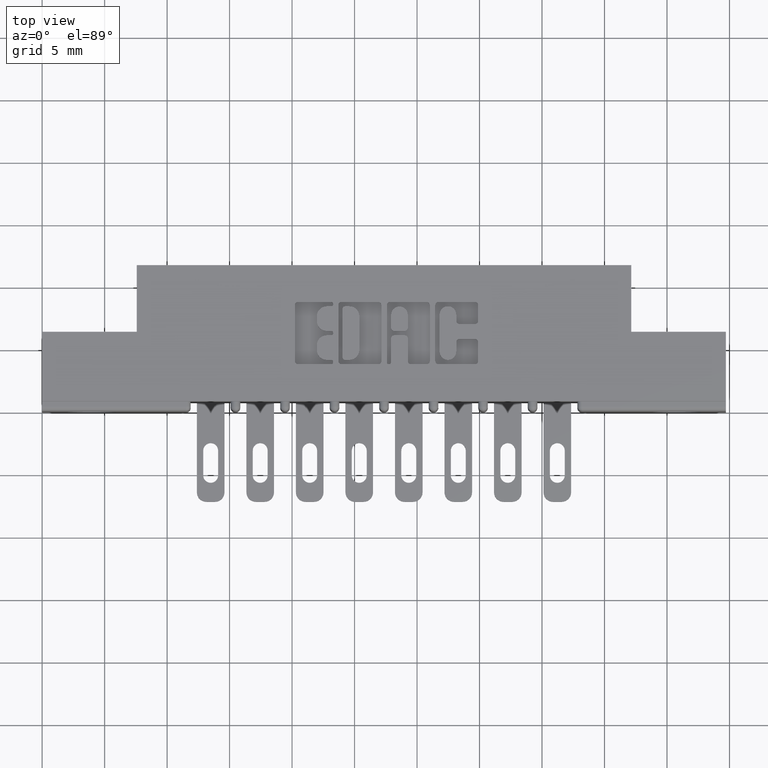
[diagram: clean part render]
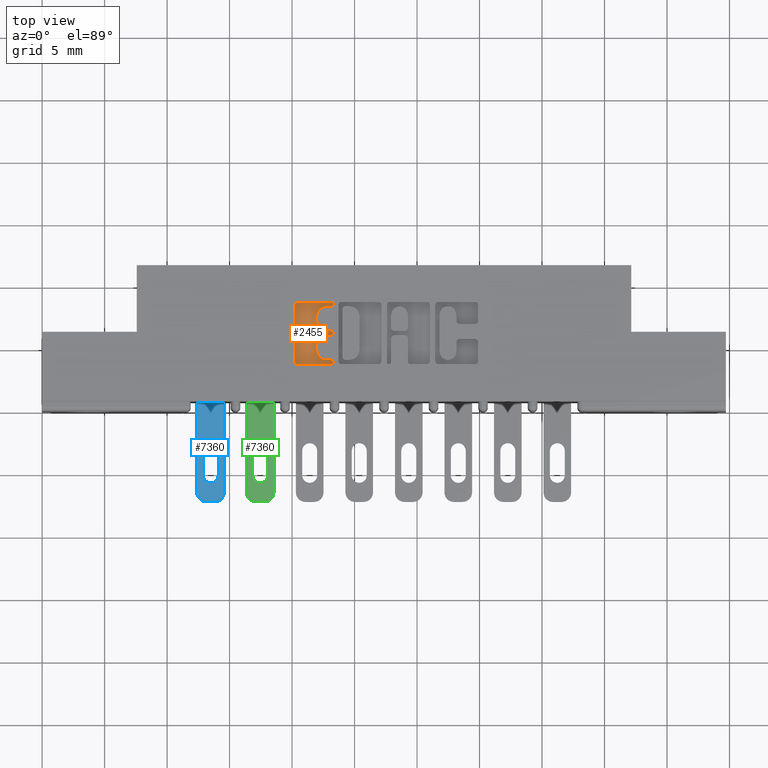
[diagram: same view with three faces highlighted in distinct colors, each labeled with its STEP entity id]
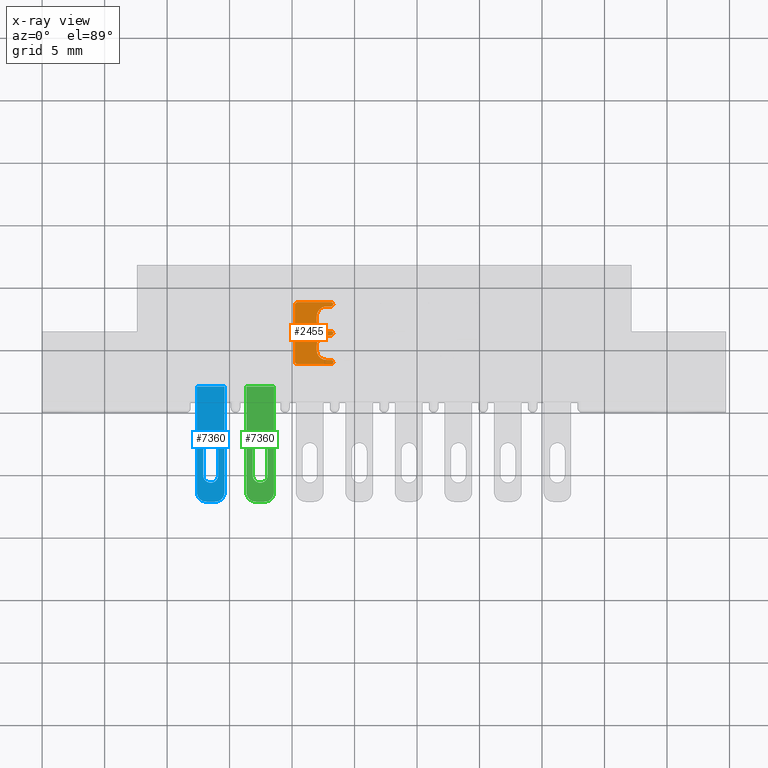
[diagram: x-ray of the same camera — body ghosted, the three highlighted faces saturated]
A machine part, top view with three faces highlighted in distinct colors.
The next image is the same camera in x-ray (body ghosted, the three faces saturated) — at least one of them is partly hidden behind the body in this view.
Their STEP definitions:

[orange] entity #2455 — the highlighted planar face has unit normal (0, 0, 1).
#19 = CARTESIAN_POINT ( 'NONE',  ( 0.8966370600050841411, 0.2386290308573598695, -0.01000000000000000021 ) ) ;
#156 = CARTESIAN_POINT ( 'NONE',  ( 0.9101336065353355931, 0.1542142671046510261, -0.01000000000000000021 ) ) ;
#428 = CARTESIAN_POINT ( 'NONE',  ( 0.8652269153529278389, 0.0000000000000000000, -0.01000000000000000021 ) ) ;
#478 = DIRECTION ( 'NONE',  ( 1.000000000000000000, 0.0000000000000000000, 0.0000000000000000000 ) ) ;
#529 = AXIS2_PLACEMENT_3D ( 'NONE', #7818, #2737, #6745 ) ;
#620 = CIRCLE ( 'NONE', #2987, 0.03141014465218178175 ) ;
#721 = DIRECTION ( 'NONE',  ( -0.0000000000000000000, 0.0000000000000000000, 1.000000000000000000 ) ) ;
#768 = ORIENTED_EDGE ( 'NONE', *, *, #2542, .T. ) ;
#812 = VERTEX_POINT ( 'NONE', #2805 ) ;
#816 = CARTESIAN_POINT ( 'NONE',  ( 0.9101336064153888739, 0.2386290308573598695, -0.01000000000000000021 ) ) ;
#993 = DIRECTION ( 'NONE',  ( -1.000000000000000000, 0.0000000000000000000, 0.0000000000000000000 ) ) ;
#1266 = CARTESIAN_POINT ( 'NONE',  ( 0.8058421106199185058, 0.1473432979619880290, -0.01000000000000000021 ) ) ;
#1304 = VECTOR ( 'NONE', #5798, 39.37007874015748143 ) ;
#1306 = ORIENTED_EDGE ( 'NONE', *, *, #6398, .T. ) ;
#1356 = EDGE_CURVE ( 'NONE', #10658, #3503, #6012, .T. ) ;
#1427 = ORIENTED_EDGE ( 'NONE', *, *, #3255, .T. ) ;
#1515 = ORIENTED_EDGE ( 'NONE', *, *, #3141, .T. ) ;
#1569 = AXIS2_PLACEMENT_3D ( 'NONE', #10983, #9924, #2816 ) ;
#1573 = VERTEX_POINT ( 'NONE', #10378 ) ;
#1676 = EDGE_CURVE ( 'NONE', #11219, #10700, #1794, .T. ) ;
#1742 = AXIS2_PLACEMENT_3D ( 'NONE', #156, #8121, #11394 ) ;
#1745 = CARTESIAN_POINT ( 'NONE',  ( 0.8966370600050841411, 0.2523709691426869184, -0.01000000000000000021 ) ) ;
#1759 = AXIS2_PLACEMENT_3D ( 'NONE', #7106, #7037, #10257 ) ;
#1794 = LINE ( 'NONE', #3793, #1304 ) ;
#1973 = ORIENTED_EDGE ( 'NONE', *, *, #7226, .T. ) ;
#2159 = EDGE_LOOP ( 'NONE', ( #4936, #768, #11924, #6663, #10409, #3053, #1973, #5950, #5264, #9595, #3760, #11023, #9573, #1427, #6684, #2612, #5627, #1306, #1515, #6001, #5304 ) ) ;
#2178 = DIRECTION ( 'NONE',  ( 1.000000000000000000, 0.0000000000000000000, 0.0000000000000000000 ) ) ;
#2233 = CARTESIAN_POINT ( 'NONE',  ( 0.0000000000000000000, 0.0000000000000000000, -0.01000000000000000021 ) ) ;
#2455 = ADVANCED_FACE ( 'NONE', ( #8262 ), #8326, .T. ) ;
#2539 = DIRECTION ( 'NONE',  ( 1.000000000000000000, 0.0000000000000000000, 0.0000000000000000000 ) ) ;
#2542 = EDGE_CURVE ( 'NONE', #6034, #11171, #10663, .T. ) ;
#2559 = DIRECTION ( 'NONE',  ( 1.000000000000000000, 0.0000000000000000000, 0.0000000000000000000 ) ) ;
#2577 = AXIS2_PLACEMENT_3D ( 'NONE', #5103, #10587, #10206 ) ;
#2612 = ORIENTED_EDGE ( 'NONE', *, *, #4764, .T. ) ;
#2737 = DIRECTION ( 'NONE',  ( -0.0000000000000000000, 0.0000000000000000000, 1.000000000000000000 ) ) ;
#2805 = CARTESIAN_POINT ( 'NONE',  ( 0.9170045756779998669, 0.3367857328953892670, -0.01000000000000000021 ) ) ;
#2811 = DIRECTION ( 'NONE',  ( -0.0000000000000000000, 0.0000000000000000000, 1.000000000000000000 ) ) ;
#2816 = DIRECTION ( 'NONE',  ( 1.000000000000000000, 0.0000000000000000000, 0.0000000000000000000 ) ) ;
#2826 = VECTOR ( 'NONE', #11075, 39.37007874015748143 ) ;
#2851 = CIRCLE ( 'NONE', #1569, 0.03141014465221578927 ) ;
#2987 = AXIS2_PLACEMENT_3D ( 'NONE', #12162, #4055, #2178 ) ;
#3028 = CARTESIAN_POINT ( 'NONE',  ( 0.9101336065353514693, 0.3299147637527387600, -0.01000000000000000021 ) ) ;
#3053 = ORIENTED_EDGE ( 'NONE', *, *, #7648, .T. ) ;
#3081 = AXIS2_PLACEMENT_3D ( 'NONE', #8672, #5638, #478 ) ;
#3121 = EDGE_CURVE ( 'NONE', #12800, #5289, #620, .T. ) ;
#3141 = EDGE_CURVE ( 'NONE', #12904, #9001, #9094, .T. ) ;
#3153 = CARTESIAN_POINT ( 'NONE',  ( 0.9101336064154144090, 0.1610852362473132737, -0.01000000000000000021 ) ) ;
#3205 = VECTOR ( 'NONE', #10625, 39.37007874015748143 ) ;
#3255 = EDGE_CURVE ( 'NONE', #12800, #5563, #4522, .T. ) ;
#3259 = VERTEX_POINT ( 'NONE', #5520 ) ;
#3502 = CARTESIAN_POINT ( 'NONE',  ( 0.9101336065353355931, 0.1542142671046510261, -0.01000000000000000021 ) ) ;
#3503 = VERTEX_POINT ( 'NONE', #11812 ) ;
#3760 = ORIENTED_EDGE ( 'NONE', *, *, #3774, .T. ) ;
#3761 = DIRECTION ( 'NONE',  ( -0.0000000000000000000, 0.0000000000000000000, 1.000000000000000000 ) ) ;
#3774 = EDGE_CURVE ( 'NONE', #3503, #6015, #4543, .T. ) ;
#3793 = CARTESIAN_POINT ( 'NONE',  ( 0.0000000000000000000, 0.3436567020380357218, -0.01000000000000000021 ) ) ;
#3960 = EDGE_CURVE ( 'NONE', #10966, #8884, #9896, .T. ) ;
#4055 = DIRECTION ( 'NONE',  ( -0.0000000000000000000, 0.0000000000000000000, 1.000000000000000000 ) ) ;
#4115 = LINE ( 'NONE', #6993, #2826 ) ;
#4165 = CARTESIAN_POINT ( 'NONE',  ( 0.9101336065353514693, 0.3436567020380357218, -0.01000000000000000021 ) ) ;
#4407 = EDGE_CURVE ( 'NONE', #11171, #812, #6870, .T. ) ;
#4440 = DIRECTION ( 'NONE',  ( -0.0000000000000000000, 0.0000000000000000000, 1.000000000000000000 ) ) ;
#4522 = LINE ( 'NONE', #428, #3205 ) ;
#4543 = CIRCLE ( 'NONE', #8609, 0.006870969142662229460 ) ;
#4621 = DIRECTION ( 'NONE',  ( 1.000000000000000000, 6.876017002796114919E-15, 0.0000000000000000000 ) ) ;
#4696 = VECTOR ( 'NONE', #993, 39.37007874015748143 ) ;
#4764 = EDGE_CURVE ( 'NONE', #8590, #10966, #4115, .T. ) ;
#4783 = CARTESIAN_POINT ( 'NONE',  ( 0.7960264404161154772, 0.1571589681657930282, -0.01000000000000000021 ) ) ;
#4936 = ORIENTED_EDGE ( 'NONE', *, *, #12693, .F. ) ;
#5103 = CARTESIAN_POINT ( 'NONE',  ( 0.9101336065353514693, 0.3367857328953892670, -0.01000000000000000021 ) ) ;
#5264 = ORIENTED_EDGE ( 'NONE', *, *, #7635, .T. ) ;
#5289 = VERTEX_POINT ( 'NONE', #8987 ) ;
#5304 = ORIENTED_EDGE ( 'NONE', *, *, #12795, .T. ) ;
#5305 = DIRECTION ( 'NONE',  ( 1.000000000000000000, 0.0000000000000000000, 0.0000000000000000000 ) ) ;
#5520 = CARTESIAN_POINT ( 'NONE',  ( 0.8652269153529097423, 0.2837811137948614282, -0.01000000000000000021 ) ) ;
#5563 = VERTEX_POINT ( 'NONE', #6037 ) ;
#5627 = ORIENTED_EDGE ( 'NONE', *, *, #3960, .T. ) ;
#5638 = DIRECTION ( 'NONE',  ( -0.0000000000000000000, 0.0000000000000000000, 1.000000000000000000 ) ) ;
#5649 = AXIS2_PLACEMENT_3D ( 'NONE', #6111, #10205, #9188 ) ;
#5694 = CARTESIAN_POINT ( 'NONE',  ( 0.8652269153529278389, 0.1924953808994934457, -0.01000000000000000021 ) ) ;
#5772 = AXIS2_PLACEMENT_3D ( 'NONE', #5809, #721, #2539 ) ;
#5798 = DIRECTION ( 'NONE',  ( -1.000000000000000000, 0.0000000000000000000, 0.0000000000000000000 ) ) ;
#5809 = CARTESIAN_POINT ( 'NONE',  ( 0.8058421106199380457, 0.3338410318342131533, -0.01000000000000000021 ) ) ;
#5836 = DIRECTION ( 'NONE',  ( 1.000000000000000000, 0.0000000000000000000, 0.0000000000000000000 ) ) ;
#5950 = ORIENTED_EDGE ( 'NONE', *, *, #10829, .T. ) ;
#6001 = ORIENTED_EDGE ( 'NONE', *, *, #9442, .F. ) ;
#6012 = CIRCLE ( 'NONE', #1742, 0.006870969142662229460 ) ;
#6015 = VERTEX_POINT ( 'NONE', #3153 ) ;
#6034 = VERTEX_POINT ( 'NONE', #10246 ) ;
#6037 = CARTESIAN_POINT ( 'NONE',  ( 0.8652269153529278389, 0.2072188862052036229, -0.01000000000000000021 ) ) ;
#6093 = CARTESIAN_POINT ( 'NONE',  ( 0.9101336065353514693, 0.3367857328953892670, -0.01000000000000000021 ) ) ;
#6111 = CARTESIAN_POINT ( 'NONE',  ( 0.8966370600050841411, 0.2072188862052036229, -0.01000000000000000021 ) ) ;
#6134 = CARTESIAN_POINT ( 'NONE',  ( 0.0000000000000000000, 0.2523709691426869184, -0.01000000000000000021 ) ) ;
#6219 = AXIS2_PLACEMENT_3D ( 'NONE', #6093, #2811, #10189 ) ;
#6305 = CIRCLE ( 'NONE', #529, 0.006870969142663458512 ) ;
#6398 = EDGE_CURVE ( 'NONE', #8884, #12904, #6305, .T. ) ;
#6663 = ORIENTED_EDGE ( 'NONE', *, *, #7461, .T. ) ;
#6684 = ORIENTED_EDGE ( 'NONE', *, *, #11229, .F. ) ;
#6745 = DIRECTION ( 'NONE',  ( 1.000000000000000000, 0.0000000000000000000, 0.0000000000000000000 ) ) ;
#6870 = CIRCLE ( 'NONE', #6219, 0.006870969142648433205 ) ;
#6878 = AXIS2_PLACEMENT_3D ( 'NONE', #10155, #11399, #5305 ) ;
#6933 = CARTESIAN_POINT ( 'NONE',  ( 0.9101336064154144090, 0.1473432979619887506, -0.01000000000000000021 ) ) ;
#6935 = LINE ( 'NONE', #11021, #8120 ) ;
#6966 = EDGE_CURVE ( 'NONE', #6015, #5289, #6935, .T. ) ;
#6993 = CARTESIAN_POINT ( 'NONE',  ( 0.0000000000000000000, 0.2386290308573598695, -0.01000000000000000021 ) ) ;
#6997 = DIRECTION ( 'NONE',  ( -1.000000000000000000, -1.189163988687022540E-13, 0.0000000000000000000 ) ) ;
#7037 = DIRECTION ( 'NONE',  ( -0.0000000000000000000, 0.0000000000000000000, 1.000000000000000000 ) ) ;
#7106 = CARTESIAN_POINT ( 'NONE',  ( 0.9101336065353100580, 0.2455000000000234217, -0.01000000000000000021 ) ) ;
#7208 = VECTOR ( 'NONE', #2559, 39.37007874015748143 ) ;
#7226 = EDGE_CURVE ( 'NONE', #10661, #12298, #8794, .T. ) ;
#7266 = VECTOR ( 'NONE', #11608, 39.37007874015748143 ) ;
#7461 = EDGE_CURVE ( 'NONE', #812, #11219, #11125, .T. ) ;
#7632 = CARTESIAN_POINT ( 'NONE',  ( 0.9170045756779734436, 0.2455000000000234217, -0.01000000000000000021 ) ) ;
#7635 = EDGE_CURVE ( 'NONE', #11720, #10658, #7677, .T. ) ;
#7648 = EDGE_CURVE ( 'NONE', #10700, #10661, #10065, .T. ) ;
#7677 = LINE ( 'NONE', #12981, #8354 ) ;
#7701 = CARTESIAN_POINT ( 'NONE',  ( 0.0000000000000000000, 0.3299147637527387600, -0.01000000000000000021 ) ) ;
#7818 = CARTESIAN_POINT ( 'NONE',  ( 0.9101336065353100580, 0.2455000000000234217, -0.01000000000000000021 ) ) ;
#7833 = DIRECTION ( 'NONE',  ( 0.0000000000000000000, 1.000000000000000000, -0.0000000000000000000 ) ) ;
#7836 = AXIS2_PLACEMENT_3D ( 'NONE', #2233, #4440, #11330 ) ;
#8120 = VECTOR ( 'NONE', #6997, 39.37007874015748143 ) ;
#8121 = DIRECTION ( 'NONE',  ( -0.0000000000000000000, 0.0000000000000000000, 1.000000000000000000 ) ) ;
#8262 = FACE_OUTER_BOUND ( 'NONE', #2159, .T. ) ;
#8326 = PLANE ( 'NONE',  #7836 ) ;
#8354 = VECTOR ( 'NONE', #4621, 39.37007874015748143 ) ;
#8402 = CARTESIAN_POINT ( 'NONE',  ( 0.8058421106199380457, 0.3436567020380357218, -0.01000000000000000021 ) ) ;
#8590 = VERTEX_POINT ( 'NONE', #19 ) ;
#8609 = AXIS2_PLACEMENT_3D ( 'NONE', #3502, #3761, #5836 ) ;
#8672 = CARTESIAN_POINT ( 'NONE',  ( 0.8058421106199222805, 0.1571589681657930282, -0.01000000000000000021 ) ) ;
#8794 = LINE ( 'NONE', #10810, #7266 ) ;
#8821 = CIRCLE ( 'NONE', #6878, 0.03141014465217440571 ) ;
#8884 = VERTEX_POINT ( 'NONE', #7632 ) ;
#8987 = CARTESIAN_POINT ( 'NONE',  ( 0.8966370600051096762, 0.1610852362473116639, -0.01000000000000000021 ) ) ;
#9001 = VERTEX_POINT ( 'NONE', #1745 ) ;
#9005 = CARTESIAN_POINT ( 'NONE',  ( 0.7960264404161154772, 0.3338410318342131533, -0.01000000000000000021 ) ) ;
#9094 = LINE ( 'NONE', #6134, #4696 ) ;
#9188 = DIRECTION ( 'NONE',  ( 1.000000000000000000, 0.0000000000000000000, 0.0000000000000000000 ) ) ;
#9442 = EDGE_CURVE ( 'NONE', #3259, #9001, #8821, .T. ) ;
#9573 = ORIENTED_EDGE ( 'NONE', *, *, #3121, .F. ) ;
#9595 = ORIENTED_EDGE ( 'NONE', *, *, #1356, .T. ) ;
#9785 = LINE ( 'NONE', #10792, #12045 ) ;
#9896 = CIRCLE ( 'NONE', #1759, 0.006870969142663458512 ) ;
#9924 = DIRECTION ( 'NONE',  ( -0.0000000000000000000, 0.0000000000000000000, 1.000000000000000000 ) ) ;
#9931 = CIRCLE ( 'NONE', #3081, 0.009815670203805935967 ) ;
#10065 = CIRCLE ( 'NONE', #5772, 0.009815670203822599721 ) ;
#10155 = CARTESIAN_POINT ( 'NONE',  ( 0.8966370600050841411, 0.2837811137948614282, -0.01000000000000000021 ) ) ;
#10189 = DIRECTION ( 'NONE',  ( 1.000000000000000000, 0.0000000000000000000, 0.0000000000000000000 ) ) ;
#10205 = DIRECTION ( 'NONE',  ( -0.0000000000000000000, 0.0000000000000000000, 1.000000000000000000 ) ) ;
#10206 = DIRECTION ( 'NONE',  ( 1.000000000000000000, 0.0000000000000000000, 0.0000000000000000000 ) ) ;
#10246 = CARTESIAN_POINT ( 'NONE',  ( 0.8966370600051254414, 0.3299147637527387600, -0.01000000000000000021 ) ) ;
#10257 = DIRECTION ( 'NONE',  ( 1.000000000000000000, 0.0000000000000000000, 0.0000000000000000000 ) ) ;
#10378 = CARTESIAN_POINT ( 'NONE',  ( 0.8652269153529097423, 0.2985046191005228944, -0.01000000000000000021 ) ) ;
#10409 = ORIENTED_EDGE ( 'NONE', *, *, #1676, .T. ) ;
#10587 = DIRECTION ( 'NONE',  ( -0.0000000000000000000, 0.0000000000000000000, 1.000000000000000000 ) ) ;
#10625 = DIRECTION ( 'NONE',  ( 0.0000000000000000000, 1.000000000000000000, -0.0000000000000000000 ) ) ;
#10658 = VERTEX_POINT ( 'NONE', #6933 ) ;
#10661 = VERTEX_POINT ( 'NONE', #9005 ) ;
#10663 = LINE ( 'NONE', #7701, #7208 ) ;
#10700 = VERTEX_POINT ( 'NONE', #8402 ) ;
#10792 = CARTESIAN_POINT ( 'NONE',  ( 0.8652269153529097423, 0.0000000000000000000, -0.01000000000000000021 ) ) ;
#10810 = CARTESIAN_POINT ( 'NONE',  ( 0.7960264404161154772, 0.0000000000000000000, -0.01000000000000000021 ) ) ;
#10829 = EDGE_CURVE ( 'NONE', #12298, #11720, #9931, .T. ) ;
#10966 = VERTEX_POINT ( 'NONE', #816 ) ;
#10983 = CARTESIAN_POINT ( 'NONE',  ( 0.8966370600051254414, 0.2985046191005228944, -0.01000000000000000021 ) ) ;
#11021 = CARTESIAN_POINT ( 'NONE',  ( -1.915567620543177078E-14, 0.1610852362472050547, -0.01000000000000000021 ) ) ;
#11023 = ORIENTED_EDGE ( 'NONE', *, *, #6966, .T. ) ;
#11075 = DIRECTION ( 'NONE',  ( 1.000000000000000000, 0.0000000000000000000, 0.0000000000000000000 ) ) ;
#11125 = CIRCLE ( 'NONE', #2577, 0.006870969142648433205 ) ;
#11171 = VERTEX_POINT ( 'NONE', #3028 ) ;
#11219 = VERTEX_POINT ( 'NONE', #4165 ) ;
#11229 = EDGE_CURVE ( 'NONE', #8590, #5563, #12518, .T. ) ;
#11330 = DIRECTION ( 'NONE',  ( 1.000000000000000000, 0.0000000000000000000, 0.0000000000000000000 ) ) ;
#11394 = DIRECTION ( 'NONE',  ( 1.000000000000000000, 0.0000000000000000000, 0.0000000000000000000 ) ) ;
#11399 = DIRECTION ( 'NONE',  ( -0.0000000000000000000, 0.0000000000000000000, 1.000000000000000000 ) ) ;
#11608 = DIRECTION ( 'NONE',  ( 0.0000000000000000000, -1.000000000000000000, 0.0000000000000000000 ) ) ;
#11720 = VERTEX_POINT ( 'NONE', #1266 ) ;
#11812 = CARTESIAN_POINT ( 'NONE',  ( 0.9170045756779977575, 0.1542142671046510261, -0.01000000000000000021 ) ) ;
#11924 = ORIENTED_EDGE ( 'NONE', *, *, #4407, .T. ) ;
#12045 = VECTOR ( 'NONE', #7833, 39.37007874015748143 ) ;
#12162 = CARTESIAN_POINT ( 'NONE',  ( 0.8966370600051096762, 0.1924953808994934457, -0.01000000000000000021 ) ) ;
#12184 = CARTESIAN_POINT ( 'NONE',  ( 0.9101336065353100580, 0.2523709691426869184, -0.01000000000000000021 ) ) ;
#12298 = VERTEX_POINT ( 'NONE', #4783 ) ;
#12518 = CIRCLE ( 'NONE', #5649, 0.03141014465215623969 ) ;
#12693 = EDGE_CURVE ( 'NONE', #6034, #1573, #2851, .T. ) ;
#12795 = EDGE_CURVE ( 'NONE', #3259, #1573, #9785, .T. ) ;
#12800 = VERTEX_POINT ( 'NONE', #5694 ) ;
#12904 = VERTEX_POINT ( 'NONE', #12184 ) ;
#12981 = CARTESIAN_POINT ( 'NONE',  ( -1.013135022034645864E-15, 0.1473432979619824779, -0.01000000000000000021 ) ) ;

[blue] entity #7360 — the highlighted planar face has unit normal (-0, -0, -1).
#75 = AXIS2_PLACEMENT_3D ( 'NONE', #11218, #7135, #5310 ) ;
#510 = ORIENTED_EDGE ( 'NONE', *, *, #8508, .T. ) ;
#759 = CARTESIAN_POINT ( 'NONE',  ( -0.007499999999994422586, -0.3629999999999999338, -0.04350000000000078110 ) ) ;
#779 = DIRECTION ( 'NONE',  ( 0.0000000000000000000, 1.000000000000000000, 5.276369216312544239E-31 ) ) ;
#1544 = CIRCLE ( 'NONE', #7082, 0.02999999999999999889 ) ;
#1780 = CARTESIAN_POINT ( 'NONE',  ( -0.007500000000004290561, -0.2014999999999999847, 0.02350000000000044761 ) ) ;
#1825 = ORIENTED_EDGE ( 'NONE', *, *, #11130, .T. ) ;
#1959 = FACE_BOUND ( 'NONE', #6278, .T. ) ;
#2168 = LINE ( 'NONE', #9352, #7983 ) ;
#2430 = ORIENTED_EDGE ( 'NONE', *, *, #12028, .T. ) ;
#2556 = ORIENTED_EDGE ( 'NONE', *, *, #2884, .T. ) ;
#2558 = VERTEX_POINT ( 'NONE', #7584 ) ;
#2884 = EDGE_CURVE ( 'NONE', #5241, #12635, #8566, .T. ) ;
#2900 = CARTESIAN_POINT ( 'NONE',  ( -0.007500000000001763936, 0.0000000000000000000, 0.04350000000000078110 ) ) ;
#2992 = ORIENTED_EDGE ( 'NONE', *, *, #8238, .F. ) ;
#3412 = VECTOR ( 'NONE', #7419, 39.37007874015748143 ) ;
#3572 = DIRECTION ( 'NONE',  ( 0.0000000000000000000, 0.0000000000000000000, -1.000000000000000000 ) ) ;
#4028 = DIRECTION ( 'NONE',  ( 1.000000000000000000, -1.999865358359563015E-59, -1.895115065277040079E-29 ) ) ;
#4348 = EDGE_CURVE ( 'NONE', #2558, #6505, #10937, .T. ) ;
#4478 = CARTESIAN_POINT ( 'NONE',  ( -0.007499999999999919925, 0.0000000000000000000, -0.04350000000000078110 ) ) ;
#4821 = VECTOR ( 'NONE', #11194, 39.37007874015748143 ) ;
#4942 = DIRECTION ( 'NONE',  ( 0.0000000000000000000, 0.0000000000000000000, -1.000000000000000000 ) ) ;
#5010 = CIRCLE ( 'NONE', #6497, 0.03000000000000000583 ) ;
#5125 = CARTESIAN_POINT ( 'NONE',  ( -0.007499999999994422586, -0.3629999999999999338, -0.04350000000000078110 ) ) ;
#5212 = CIRCLE ( 'NONE', #75, 0.02350000000000000352 ) ;
#5241 = VERTEX_POINT ( 'NONE', #2900 ) ;
#5310 = DIRECTION ( 'NONE',  ( 0.0000000000000000000, 0.0000000000000000000, -1.000000000000000000 ) ) ;
#5542 = CARTESIAN_POINT ( 'NONE',  ( -0.007499999999998075914, -0.3329999999999999627, 0.04350000000000078110 ) ) ;
#5747 = ORIENTED_EDGE ( 'NONE', *, *, #6492, .T. ) ;
#5797 = VERTEX_POINT ( 'NONE', #8650 ) ;
#5914 = DIRECTION ( 'NONE',  ( -1.895115065277040079E-29, -5.276369216312493442E-31, -1.000000000000000000 ) ) ;
#5924 = ORIENTED_EDGE ( 'NONE', *, *, #11983, .T. ) ;
#6041 = PLANE ( 'NONE',  #6842 ) ;
#6089 = VECTOR ( 'NONE', #6687, 39.37007874015748143 ) ;
#6160 = ORIENTED_EDGE ( 'NONE', *, *, #7139, .T. ) ;
#6278 = EDGE_LOOP ( 'NONE', ( #2430, #6160, #10708, #5924 ) ) ;
#6492 = EDGE_CURVE ( 'NONE', #5797, #11040, #5010, .T. ) ;
#6497 = AXIS2_PLACEMENT_3D ( 'NONE', #11162, #12166, #4942 ) ;
#6505 = VERTEX_POINT ( 'NONE', #12239 ) ;
#6556 = CARTESIAN_POINT ( 'NONE',  ( -0.007499999999999919925, 0.0000000000000000000, -0.04350000000000078110 ) ) ;
#6687 = DIRECTION ( 'NONE',  ( -1.895115065277040079E-29, -5.276369216312493442E-31, -1.000000000000000000 ) ) ;
#6777 = CARTESIAN_POINT ( 'NONE',  ( -0.007499999999994422586, -0.3629999999999999338, -0.01349999999999918626 ) ) ;
#6842 = AXIS2_PLACEMENT_3D ( 'NONE', #759, #4028, #5914 ) ;
#7082 = AXIS2_PLACEMENT_3D ( 'NONE', #12753, #10812, #3572 ) ;
#7135 = DIRECTION ( 'NONE',  ( 1.000000000000000000, 0.0000000000000000000, 1.895115065277040079E-29 ) ) ;
#7139 = EDGE_CURVE ( 'NONE', #10611, #2558, #8334, .T. ) ;
#7360 = ADVANCED_FACE ( 'NONE', ( #7911, #1959 ), #6041, .F. ) ;
#7419 = DIRECTION ( 'NONE',  ( -1.895115065277040079E-29, -5.276369216312493442E-31, -1.000000000000000000 ) ) ;
#7428 = VERTEX_POINT ( 'NONE', #11065 ) ;
#7458 = VERTEX_POINT ( 'NONE', #5542 ) ;
#7547 = VERTEX_POINT ( 'NONE', #11649 ) ;
#7584 = CARTESIAN_POINT ( 'NONE',  ( -0.007500000000003607947, -0.2794999999999999707, 0.02350000000000044761 ) ) ;
#7761 = CARTESIAN_POINT ( 'NONE',  ( -0.007499999999994422586, -0.3629999999999999338, -0.04350000000000078110 ) ) ;
#7911 = FACE_OUTER_BOUND ( 'NONE', #13133, .T. ) ;
#7983 = VECTOR ( 'NONE', #9209, 39.37007874015748143 ) ;
#8091 = DIRECTION ( 'NONE',  ( 0.0000000000000000000, 0.0000000000000000000, -1.000000000000000000 ) ) ;
#8238 = EDGE_CURVE ( 'NONE', #5797, #12635, #9967, .T. ) ;
#8316 = LINE ( 'NONE', #11318, #4821 ) ;
#8334 = LINE ( 'NONE', #11536, #9835 ) ;
#8508 = EDGE_CURVE ( 'NONE', #7428, #7458, #1544, .T. ) ;
#8566 = LINE ( 'NONE', #4478, #3412 ) ;
#8650 = CARTESIAN_POINT ( 'NONE',  ( -0.007499999999998075914, -0.3329999999999999627, -0.04350000000000078110 ) ) ;
#9209 = DIRECTION ( 'NONE',  ( 0.0000000000000000000, 1.000000000000000000, 1.094490382077028552E-16 ) ) ;
#9352 = CARTESIAN_POINT ( 'NONE',  ( -0.007500000000004290561, -0.2014999999999999847, -0.02350000000000044761 ) ) ;
#9677 = VECTOR ( 'NONE', #779, 39.37007874015748143 ) ;
#9688 = ORIENTED_EDGE ( 'NONE', *, *, #11452, .F. ) ;
#9835 = VECTOR ( 'NONE', #10416, 39.37007874015748143 ) ;
#9967 = LINE ( 'NONE', #5125, #9677 ) ;
#10115 = DIRECTION ( 'NONE',  ( 1.000000000000000000, 0.0000000000000000000, 1.895115065277040079E-29 ) ) ;
#10416 = DIRECTION ( 'NONE',  ( 0.0000000000000000000, -1.000000000000000000, -1.094490382077028552E-16 ) ) ;
#10611 = VERTEX_POINT ( 'NONE', #1780 ) ;
#10708 = ORIENTED_EDGE ( 'NONE', *, *, #4348, .T. ) ;
#10812 = DIRECTION ( 'NONE',  ( -1.000000000000000000, -0.0000000000000000000, -1.895115065277040079E-29 ) ) ;
#10937 = CIRCLE ( 'NONE', #11149, 0.02350000000000000352 ) ;
#11040 = VERTEX_POINT ( 'NONE', #6777 ) ;
#11065 = CARTESIAN_POINT ( 'NONE',  ( -0.007499999999994422586, -0.3629999999999999338, 0.01349999999999918626 ) ) ;
#11130 = EDGE_CURVE ( 'NONE', #7458, #5241, #8316, .T. ) ;
#11149 = AXIS2_PLACEMENT_3D ( 'NONE', #11174, #10115, #8091 ) ;
#11162 = CARTESIAN_POINT ( 'NONE',  ( -0.007499999999998075914, -0.3329999999999999627, -0.01349999999999918626 ) ) ;
#11174 = CARTESIAN_POINT ( 'NONE',  ( -0.007500000000003607947, -0.2794999999999999707, 0.0000000000000000000 ) ) ;
#11194 = DIRECTION ( 'NONE',  ( 0.0000000000000000000, 1.000000000000000000, 5.276369216312544239E-31 ) ) ;
#11218 = CARTESIAN_POINT ( 'NONE',  ( -0.007500000000004290561, -0.2014999999999999847, 0.0000000000000000000 ) ) ;
#11318 = CARTESIAN_POINT ( 'NONE',  ( -0.007499999999994422586, -0.3629999999999999338, 0.04350000000000078110 ) ) ;
#11452 = EDGE_CURVE ( 'NONE', #7428, #11040, #12989, .T. ) ;
#11536 = CARTESIAN_POINT ( 'NONE',  ( -0.007500000000004290561, -0.2014999999999999847, 0.02350000000000044761 ) ) ;
#11649 = CARTESIAN_POINT ( 'NONE',  ( -0.007500000000004290561, -0.2014999999999999847, -0.02350000000000044761 ) ) ;
#11983 = EDGE_CURVE ( 'NONE', #6505, #7547, #2168, .T. ) ;
#12028 = EDGE_CURVE ( 'NONE', #7547, #10611, #5212, .T. ) ;
#12166 = DIRECTION ( 'NONE',  ( -1.000000000000000000, -0.0000000000000000000, -1.895115065277040079E-29 ) ) ;
#12239 = CARTESIAN_POINT ( 'NONE',  ( -0.007500000000003607947, -0.2794999999999999707, -0.02350000000000044761 ) ) ;
#12635 = VERTEX_POINT ( 'NONE', #6556 ) ;
#12753 = CARTESIAN_POINT ( 'NONE',  ( -0.007499999999998075914, -0.3329999999999999627, 0.01349999999999918626 ) ) ;
#12989 = LINE ( 'NONE', #7761, #6089 ) ;
#13133 = EDGE_LOOP ( 'NONE', ( #2992, #5747, #9688, #510, #1825, #2556 ) ) ;

[green] entity #7360 — the highlighted planar face has unit normal (-0, -0, -1).
#75 = AXIS2_PLACEMENT_3D ( 'NONE', #11218, #7135, #5310 ) ;
#510 = ORIENTED_EDGE ( 'NONE', *, *, #8508, .T. ) ;
#759 = CARTESIAN_POINT ( 'NONE',  ( -0.007499999999994422586, -0.3629999999999999338, -0.04350000000000078110 ) ) ;
#779 = DIRECTION ( 'NONE',  ( 0.0000000000000000000, 1.000000000000000000, 5.276369216312544239E-31 ) ) ;
#1544 = CIRCLE ( 'NONE', #7082, 0.02999999999999999889 ) ;
#1780 = CARTESIAN_POINT ( 'NONE',  ( -0.007500000000004290561, -0.2014999999999999847, 0.02350000000000044761 ) ) ;
#1825 = ORIENTED_EDGE ( 'NONE', *, *, #11130, .T. ) ;
#1959 = FACE_BOUND ( 'NONE', #6278, .T. ) ;
#2168 = LINE ( 'NONE', #9352, #7983 ) ;
#2430 = ORIENTED_EDGE ( 'NONE', *, *, #12028, .T. ) ;
#2556 = ORIENTED_EDGE ( 'NONE', *, *, #2884, .T. ) ;
#2558 = VERTEX_POINT ( 'NONE', #7584 ) ;
#2884 = EDGE_CURVE ( 'NONE', #5241, #12635, #8566, .T. ) ;
#2900 = CARTESIAN_POINT ( 'NONE',  ( -0.007500000000001763936, 0.0000000000000000000, 0.04350000000000078110 ) ) ;
#2992 = ORIENTED_EDGE ( 'NONE', *, *, #8238, .F. ) ;
#3412 = VECTOR ( 'NONE', #7419, 39.37007874015748143 ) ;
#3572 = DIRECTION ( 'NONE',  ( 0.0000000000000000000, 0.0000000000000000000, -1.000000000000000000 ) ) ;
#4028 = DIRECTION ( 'NONE',  ( 1.000000000000000000, -1.999865358359563015E-59, -1.895115065277040079E-29 ) ) ;
#4348 = EDGE_CURVE ( 'NONE', #2558, #6505, #10937, .T. ) ;
#4478 = CARTESIAN_POINT ( 'NONE',  ( -0.007499999999999919925, 0.0000000000000000000, -0.04350000000000078110 ) ) ;
#4821 = VECTOR ( 'NONE', #11194, 39.37007874015748143 ) ;
#4942 = DIRECTION ( 'NONE',  ( 0.0000000000000000000, 0.0000000000000000000, -1.000000000000000000 ) ) ;
#5010 = CIRCLE ( 'NONE', #6497, 0.03000000000000000583 ) ;
#5125 = CARTESIAN_POINT ( 'NONE',  ( -0.007499999999994422586, -0.3629999999999999338, -0.04350000000000078110 ) ) ;
#5212 = CIRCLE ( 'NONE', #75, 0.02350000000000000352 ) ;
#5241 = VERTEX_POINT ( 'NONE', #2900 ) ;
#5310 = DIRECTION ( 'NONE',  ( 0.0000000000000000000, 0.0000000000000000000, -1.000000000000000000 ) ) ;
#5542 = CARTESIAN_POINT ( 'NONE',  ( -0.007499999999998075914, -0.3329999999999999627, 0.04350000000000078110 ) ) ;
#5747 = ORIENTED_EDGE ( 'NONE', *, *, #6492, .T. ) ;
#5797 = VERTEX_POINT ( 'NONE', #8650 ) ;
#5914 = DIRECTION ( 'NONE',  ( -1.895115065277040079E-29, -5.276369216312493442E-31, -1.000000000000000000 ) ) ;
#5924 = ORIENTED_EDGE ( 'NONE', *, *, #11983, .T. ) ;
#6041 = PLANE ( 'NONE',  #6842 ) ;
#6089 = VECTOR ( 'NONE', #6687, 39.37007874015748143 ) ;
#6160 = ORIENTED_EDGE ( 'NONE', *, *, #7139, .T. ) ;
#6278 = EDGE_LOOP ( 'NONE', ( #2430, #6160, #10708, #5924 ) ) ;
#6492 = EDGE_CURVE ( 'NONE', #5797, #11040, #5010, .T. ) ;
#6497 = AXIS2_PLACEMENT_3D ( 'NONE', #11162, #12166, #4942 ) ;
#6505 = VERTEX_POINT ( 'NONE', #12239 ) ;
#6556 = CARTESIAN_POINT ( 'NONE',  ( -0.007499999999999919925, 0.0000000000000000000, -0.04350000000000078110 ) ) ;
#6687 = DIRECTION ( 'NONE',  ( -1.895115065277040079E-29, -5.276369216312493442E-31, -1.000000000000000000 ) ) ;
#6777 = CARTESIAN_POINT ( 'NONE',  ( -0.007499999999994422586, -0.3629999999999999338, -0.01349999999999918626 ) ) ;
#6842 = AXIS2_PLACEMENT_3D ( 'NONE', #759, #4028, #5914 ) ;
#7082 = AXIS2_PLACEMENT_3D ( 'NONE', #12753, #10812, #3572 ) ;
#7135 = DIRECTION ( 'NONE',  ( 1.000000000000000000, 0.0000000000000000000, 1.895115065277040079E-29 ) ) ;
#7139 = EDGE_CURVE ( 'NONE', #10611, #2558, #8334, .T. ) ;
#7360 = ADVANCED_FACE ( 'NONE', ( #7911, #1959 ), #6041, .F. ) ;
#7419 = DIRECTION ( 'NONE',  ( -1.895115065277040079E-29, -5.276369216312493442E-31, -1.000000000000000000 ) ) ;
#7428 = VERTEX_POINT ( 'NONE', #11065 ) ;
#7458 = VERTEX_POINT ( 'NONE', #5542 ) ;
#7547 = VERTEX_POINT ( 'NONE', #11649 ) ;
#7584 = CARTESIAN_POINT ( 'NONE',  ( -0.007500000000003607947, -0.2794999999999999707, 0.02350000000000044761 ) ) ;
#7761 = CARTESIAN_POINT ( 'NONE',  ( -0.007499999999994422586, -0.3629999999999999338, -0.04350000000000078110 ) ) ;
#7911 = FACE_OUTER_BOUND ( 'NONE', #13133, .T. ) ;
#7983 = VECTOR ( 'NONE', #9209, 39.37007874015748143 ) ;
#8091 = DIRECTION ( 'NONE',  ( 0.0000000000000000000, 0.0000000000000000000, -1.000000000000000000 ) ) ;
#8238 = EDGE_CURVE ( 'NONE', #5797, #12635, #9967, .T. ) ;
#8316 = LINE ( 'NONE', #11318, #4821 ) ;
#8334 = LINE ( 'NONE', #11536, #9835 ) ;
#8508 = EDGE_CURVE ( 'NONE', #7428, #7458, #1544, .T. ) ;
#8566 = LINE ( 'NONE', #4478, #3412 ) ;
#8650 = CARTESIAN_POINT ( 'NONE',  ( -0.007499999999998075914, -0.3329999999999999627, -0.04350000000000078110 ) ) ;
#9209 = DIRECTION ( 'NONE',  ( 0.0000000000000000000, 1.000000000000000000, 1.094490382077028552E-16 ) ) ;
#9352 = CARTESIAN_POINT ( 'NONE',  ( -0.007500000000004290561, -0.2014999999999999847, -0.02350000000000044761 ) ) ;
#9677 = VECTOR ( 'NONE', #779, 39.37007874015748143 ) ;
#9688 = ORIENTED_EDGE ( 'NONE', *, *, #11452, .F. ) ;
#9835 = VECTOR ( 'NONE', #10416, 39.37007874015748143 ) ;
#9967 = LINE ( 'NONE', #5125, #9677 ) ;
#10115 = DIRECTION ( 'NONE',  ( 1.000000000000000000, 0.0000000000000000000, 1.895115065277040079E-29 ) ) ;
#10416 = DIRECTION ( 'NONE',  ( 0.0000000000000000000, -1.000000000000000000, -1.094490382077028552E-16 ) ) ;
#10611 = VERTEX_POINT ( 'NONE', #1780 ) ;
#10708 = ORIENTED_EDGE ( 'NONE', *, *, #4348, .T. ) ;
#10812 = DIRECTION ( 'NONE',  ( -1.000000000000000000, -0.0000000000000000000, -1.895115065277040079E-29 ) ) ;
#10937 = CIRCLE ( 'NONE', #11149, 0.02350000000000000352 ) ;
#11040 = VERTEX_POINT ( 'NONE', #6777 ) ;
#11065 = CARTESIAN_POINT ( 'NONE',  ( -0.007499999999994422586, -0.3629999999999999338, 0.01349999999999918626 ) ) ;
#11130 = EDGE_CURVE ( 'NONE', #7458, #5241, #8316, .T. ) ;
#11149 = AXIS2_PLACEMENT_3D ( 'NONE', #11174, #10115, #8091 ) ;
#11162 = CARTESIAN_POINT ( 'NONE',  ( -0.007499999999998075914, -0.3329999999999999627, -0.01349999999999918626 ) ) ;
#11174 = CARTESIAN_POINT ( 'NONE',  ( -0.007500000000003607947, -0.2794999999999999707, 0.0000000000000000000 ) ) ;
#11194 = DIRECTION ( 'NONE',  ( 0.0000000000000000000, 1.000000000000000000, 5.276369216312544239E-31 ) ) ;
#11218 = CARTESIAN_POINT ( 'NONE',  ( -0.007500000000004290561, -0.2014999999999999847, 0.0000000000000000000 ) ) ;
#11318 = CARTESIAN_POINT ( 'NONE',  ( -0.007499999999994422586, -0.3629999999999999338, 0.04350000000000078110 ) ) ;
#11452 = EDGE_CURVE ( 'NONE', #7428, #11040, #12989, .T. ) ;
#11536 = CARTESIAN_POINT ( 'NONE',  ( -0.007500000000004290561, -0.2014999999999999847, 0.02350000000000044761 ) ) ;
#11649 = CARTESIAN_POINT ( 'NONE',  ( -0.007500000000004290561, -0.2014999999999999847, -0.02350000000000044761 ) ) ;
#11983 = EDGE_CURVE ( 'NONE', #6505, #7547, #2168, .T. ) ;
#12028 = EDGE_CURVE ( 'NONE', #7547, #10611, #5212, .T. ) ;
#12166 = DIRECTION ( 'NONE',  ( -1.000000000000000000, -0.0000000000000000000, -1.895115065277040079E-29 ) ) ;
#12239 = CARTESIAN_POINT ( 'NONE',  ( -0.007500000000003607947, -0.2794999999999999707, -0.02350000000000044761 ) ) ;
#12635 = VERTEX_POINT ( 'NONE', #6556 ) ;
#12753 = CARTESIAN_POINT ( 'NONE',  ( -0.007499999999998075914, -0.3329999999999999627, 0.01349999999999918626 ) ) ;
#12989 = LINE ( 'NONE', #7761, #6089 ) ;
#13133 = EDGE_LOOP ( 'NONE', ( #2992, #5747, #9688, #510, #1825, #2556 ) ) ;